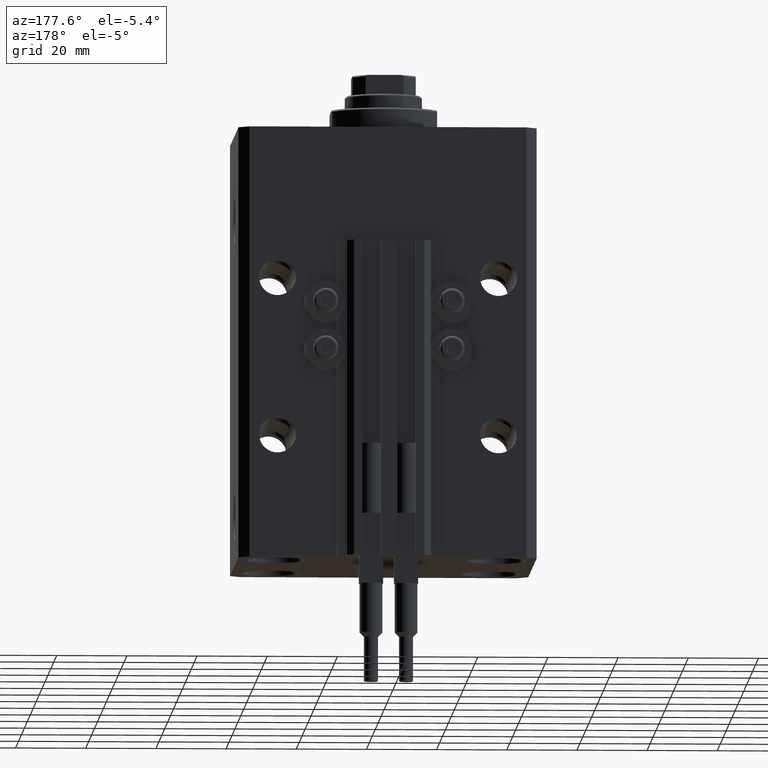
[diagram: clean part render]
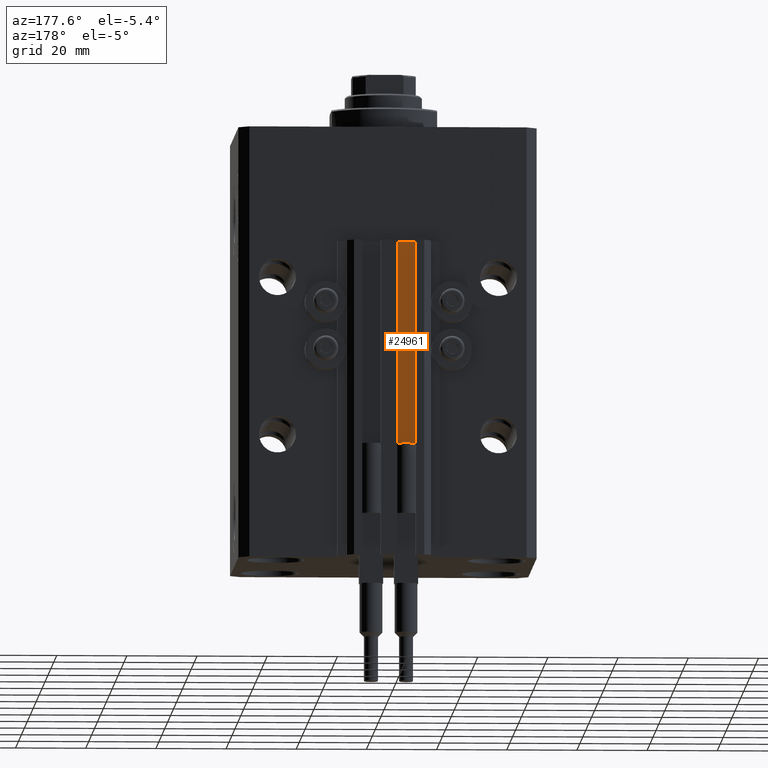
[diagram: same view with one face highlighted and labeled with its STEP entity id]
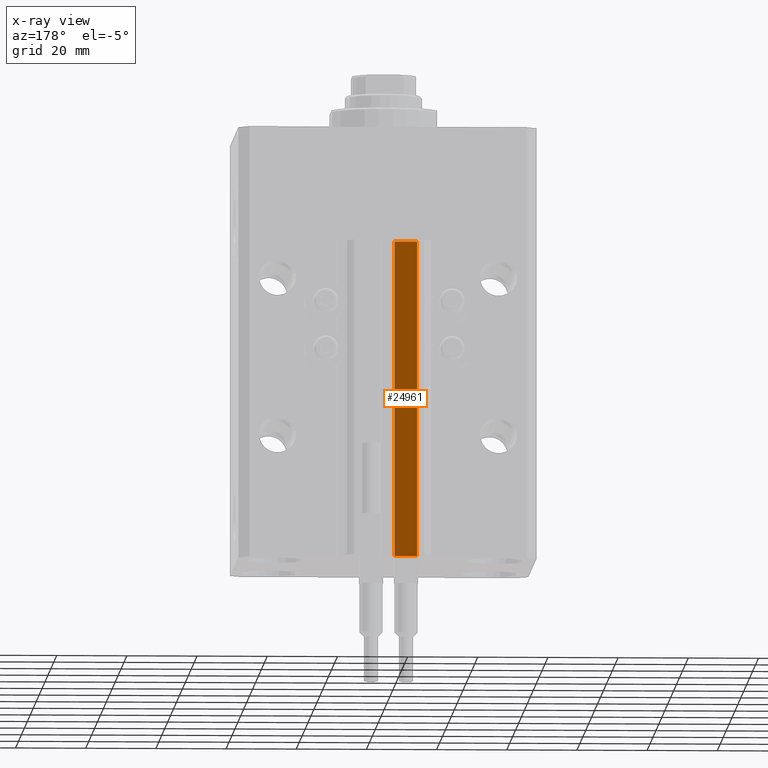
[diagram: x-ray of the same camera — body ghosted, the highlighted face saturated]
A machine part, auxiliary view. The second image highlights one B-rep face of the part: STEP entity #24961.
The next image is the same camera in x-ray: the body ghosted, the highlighted face saturated — about 0% of this face is hidden behind the body in this view.
In plain terms, the highlighted planar face has unit normal (0, 1, 0).
Its self-contained STEP definition (entity closure, byte-faithful):
#885 = VERTEX_POINT ( 'NONE', #34720 ) ;
#2449 = PLANE ( 'NONE',  #5001 ) ;
#5001 = AXIS2_PLACEMENT_3D ( 'NONE', #32443, #21207, #14205 ) ;
#5826 = LINE ( 'NONE', #13333, #37564 ) ;
#6002 = DIRECTION ( 'NONE',  ( -1.000000000000000000, 0.000000000000000000, 0.000000000000000000 ) ) ;
#9231 = CARTESIAN_POINT ( 'NONE',  ( -1.800000000000000933, 33.50000000000000000, -33.00000000000000000 ) ) ;
#12984 = LINE ( 'NONE', #9231, #30702 ) ;
#13333 = CARTESIAN_POINT ( 'NONE',  ( -8.199999999999997513, 33.50000000000000000, -123.0000000000000000 ) ) ;
#14205 = DIRECTION ( 'NONE',  ( 0.000000000000000000, 0.000000000000000000, 1.000000000000000000 ) ) ;
#15680 = CARTESIAN_POINT ( 'NONE',  ( -1.800000000000000933, 33.50000000000000000, -123.0000000000000000 ) ) ;
#16502 = ORIENTED_EDGE ( 'NONE', *, *, #45155, .T. ) ;
#17203 = FACE_OUTER_BOUND ( 'NONE', #40892, .T. ) ;
#17989 = CARTESIAN_POINT ( 'NONE',  ( -1.800000000000000933, 33.50000000000000000, -123.0000000000000000 ) ) ;
#18069 = VERTEX_POINT ( 'NONE', #49169 ) ;
#21002 = LINE ( 'NONE', #17989, #34214 ) ;
#21035 = ORIENTED_EDGE ( 'NONE', *, *, #28810, .F. ) ;
#21207 = DIRECTION ( 'NONE',  ( 0.000000000000000000, 1.000000000000000000, -0.000000000000000000 ) ) ;
#22844 = EDGE_CURVE ( 'NONE', #37380, #885, #38439, .T. ) ;
#24474 = DIRECTION ( 'NONE',  ( -1.000000000000000000, 0.000000000000000000, 0.000000000000000000 ) ) ;
#24961 = ADVANCED_FACE ( 'NONE', ( #17203 ), #2449, .T. ) ;
#24965 = VERTEX_POINT ( 'NONE', #25211 ) ;
#25211 = CARTESIAN_POINT ( 'NONE',  ( -8.199999999999997513, 33.50000000000000000, -123.0000000000000000 ) ) ;
#26290 = CARTESIAN_POINT ( 'NONE',  ( -1.800000000000000933, 33.50000000000000000, -123.0000000000000000 ) ) ;
#28810 = EDGE_CURVE ( 'NONE', #885, #18069, #12984, .T. ) ;
#28828 = DIRECTION ( 'NONE',  ( 0.000000000000000000, 0.000000000000000000, 1.000000000000000000 ) ) ;
#30702 = VECTOR ( 'NONE', #24474, 1000.000000000000000 ) ;
#32334 = ORIENTED_EDGE ( 'NONE', *, *, #22844, .F. ) ;
#32443 = CARTESIAN_POINT ( 'NONE',  ( -1.800000000000000933, 33.50000000000000000, -123.0000000000000000 ) ) ;
#34214 = VECTOR ( 'NONE', #6002, 1000.000000000000000 ) ;
#34689 = DIRECTION ( 'NONE',  ( 0.000000000000000000, 0.000000000000000000, 1.000000000000000000 ) ) ;
#34720 = CARTESIAN_POINT ( 'NONE',  ( -1.800000000000000933, 33.50000000000000000, -33.00000000000000000 ) ) ;
#35205 = ORIENTED_EDGE ( 'NONE', *, *, #49009, .T. ) ;
#37380 = VERTEX_POINT ( 'NONE', #26290 ) ;
#37564 = VECTOR ( 'NONE', #28828, 1000.000000000000000 ) ;
#38439 = LINE ( 'NONE', #15680, #39264 ) ;
#39264 = VECTOR ( 'NONE', #34689, 1000.000000000000000 ) ;
#40892 = EDGE_LOOP ( 'NONE', ( #21035, #32334, #16502, #35205 ) ) ;
#45155 = EDGE_CURVE ( 'NONE', #37380, #24965, #21002, .T. ) ;
#49009 = EDGE_CURVE ( 'NONE', #24965, #18069, #5826, .T. ) ;
#49169 = CARTESIAN_POINT ( 'NONE',  ( -8.199999999999997513, 33.50000000000000000, -33.00000000000000000 ) ) ;